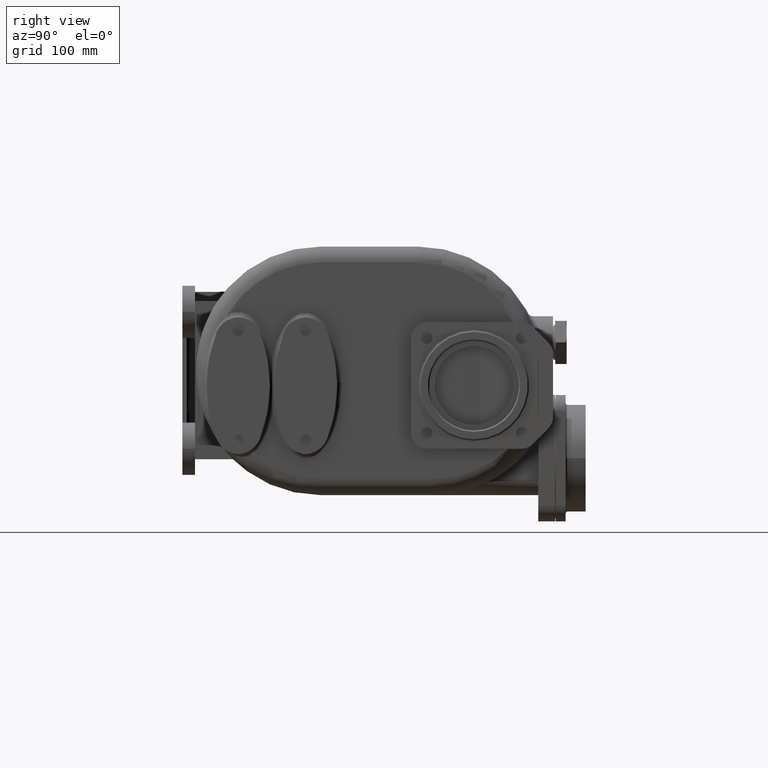
[diagram: clean part render]
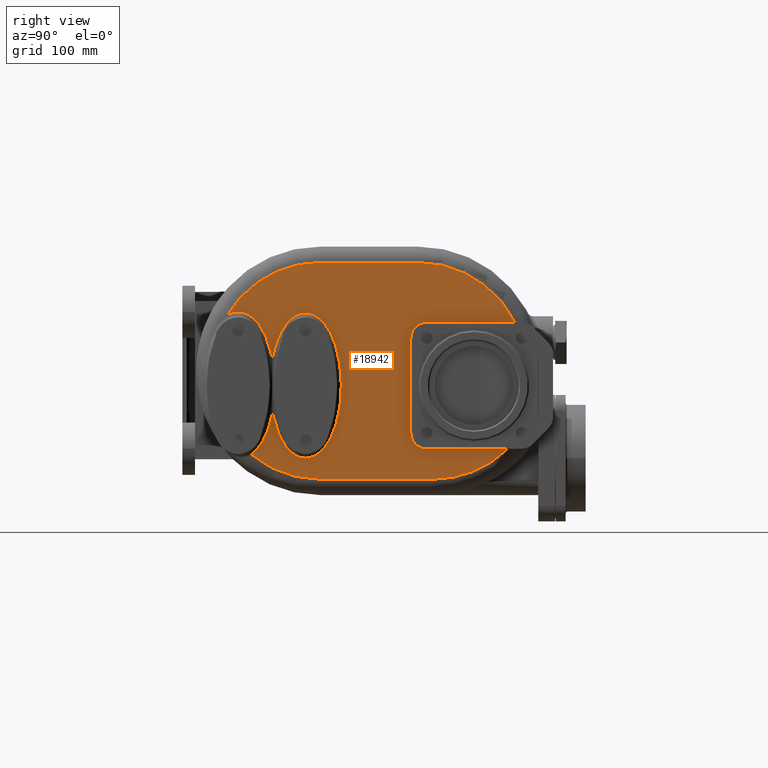
[diagram: same view with one face highlighted and labeled with its STEP entity id]
A machine part, right view. The second image highlights one B-rep face of the part: STEP entity #18942.
In plain terms, the highlighted planar face has unit normal (-1, 0, 0).
Its self-contained STEP definition (entity closure, byte-faithful):
#907=DIRECTION('',(0.E0,1.E0,0.E0));
#908=VECTOR('',#907,7.721747427557E1);
#909=CARTESIAN_POINT('',(1.325E2,2.2E2,-7.4E1));
#910=LINE('',#909,#908);
#924=CARTESIAN_POINT('',(1.325E2,2.2E2,-5.9E1));
#925=DIRECTION('',(-1.E0,0.E0,0.E0));
#926=DIRECTION('',(0.E0,0.E0,-1.E0));
#927=AXIS2_PLACEMENT_3D('',#924,#925,#926);
#933=DIRECTION('',(0.E0,0.E0,-1.E0));
#934=VECTOR('',#933,9.E1);
#935=CARTESIAN_POINT('',(1.325E2,2.05E2,3.1E1));
#936=LINE('',#935,#934);
#950=CARTESIAN_POINT('',(1.325E2,2.2E2,3.1E1));
#951=DIRECTION('',(-1.E0,0.E0,0.E0));
#952=DIRECTION('',(0.E0,-1.E0,0.E0));
#953=AXIS2_PLACEMENT_3D('',#950,#951,#952);
#959=DIRECTION('',(0.E0,-1.E0,0.E0));
#960=VECTOR('',#959,8.393324066124E1);
#961=CARTESIAN_POINT('',(1.325E2,3.039332406612E2,4.6E1));
#962=LINE('',#961,#960);
#1549=CARTESIAN_POINT('',(1.325000328696E2,4.100000001190E1,5.599999999963E1));
#1550=CARTESIAN_POINT('',(1.325000597067E2,4.078904459422E1,5.599995861454E1));
#1551=CARTESIAN_POINT('',(1.324999722900E2,4.036731719132E1,5.599263950274E1));
#1552=CARTESIAN_POINT('',(1.325000074249E2,3.973543857461E1,5.596075368949E1));
#1553=CARTESIAN_POINT('',(1.324999980105E2,3.910378540716E1,5.590774089882E1));
#1554=CARTESIAN_POINT('',(1.325000005331E2,3.847206560237E1,5.583355820947E1));
#1555=CARTESIAN_POINT('',(1.324999998571E2,3.783995883377E1,5.573791262683E1));
#1556=CARTESIAN_POINT('',(1.325000000384E2,3.720725656494E1,5.562036078564E1));
#1557=CARTESIAN_POINT('',(1.324999999894E2,3.657333886004E1,5.548066543318E1));
#1558=CARTESIAN_POINT('',(1.325000000042E2,3.593754042254E1,5.531843172213E1));
#1559=CARTESIAN_POINT('',(1.324999999939E2,3.529930544617E1,5.513310105641E1));
#1560=CARTESIAN_POINT('',(1.325000000202E2,3.465878790745E1,5.492418128094E1));
#1561=CARTESIAN_POINT('',(1.324999999254E2,3.401634381187E1,5.469115863273E1));
#1562=CARTESIAN_POINT('',(1.325000002781E2,3.337200397269E1,5.443334788660E1));
#1563=CARTESIAN_POINT('',(1.324999989623E2,3.272487173303E1,5.414985061923E1));
#1564=CARTESIAN_POINT('',(1.325000038726E2,3.207430683368E1,5.383967718891E1));
#1565=CARTESIAN_POINT('',(1.324999855473E2,3.141991594930E1,5.350170479017E1));
#1566=CARTESIAN_POINT('',(1.325000311413E2,3.098062045923E1,5.325709667145E1));
#1567=CARTESIAN_POINT('',(1.325000206654E2,3.076040674511E1,5.312978356908E1));
#1569=CARTESIAN_POINT('',(1.325E2,1.19E2,0.E0));
#1570=DIRECTION('',(1.E0,0.E0,0.E0));
#1571=DIRECTION('',(0.E0,0.E0,1.E0));
#1572=AXIS2_PLACEMENT_3D('',#1569,#1570,#1571);
#1574=DIRECTION('',(0.E0,-1.E0,0.E0));
#1575=VECTOR('',#1574,9.277576673753E1);
#1576=CARTESIAN_POINT('',(1.325E2,2.117757667375E2,1.03E2));
#1577=LINE('',#1576,#1575);
#1578=CARTESIAN_POINT('',(1.325E2,2.117757667375E2,0.E0));
#1579=DIRECTION('',(1.E0,0.E0,0.E0));
#1580=DIRECTION('',(0.E0,8.947327565409E-1,4.466019417476E-1));
#1581=AXIS2_PLACEMENT_3D('',#1578,#1579,#1580);
#1583=CARTESIAN_POINT('',(1.325E2,2.255725163232E2,0.E0));
#1584=DIRECTION('',(1.E0,0.E0,0.E0));
#1585=DIRECTION('',(0.E0,0.E0,-1.E0));
#1586=AXIS2_PLACEMENT_3D('',#1583,#1584,#1585);
#1588=DIRECTION('',(0.E0,1.E0,0.E0));
#1589=VECTOR('',#1588,1.065725163232E2);
#1590=CARTESIAN_POINT('',(1.325E2,1.19E2,-1.03E2));
#1591=LINE('',#1590,#1589);
#1592=CARTESIAN_POINT('',(1.325E2,1.19E2,0.E0));
#1593=DIRECTION('',(1.E0,0.E0,0.E0));
#1594=DIRECTION('',(0.E0,-6.348914105984E-1,-7.726013828284E-1));
#1595=AXIS2_PLACEMENT_3D('',#1592,#1593,#1594);
#1597=CARTESIAN_POINT('',(1.325E2,5.360618488877E1,-7.957794221179E1));
#1598=CARTESIAN_POINT('',(1.325000099529E2,5.383258212588E1,-7.941142149109E1));
#1599=CARTESIAN_POINT('',(1.324999953808E2,5.428695138342E1,-7.906652078089E1));
#1600=CARTESIAN_POINT('',(1.325000012377E2,5.497183810891E1,-7.851313720652E1));
#1601=CARTESIAN_POINT('',(1.324999996684E2,5.566126164059E1,-7.792104444036E1));
#1602=CARTESIAN_POINT('',(1.325000000889E2,5.635549428510E1,-7.728809084481E1));
#1603=CARTESIAN_POINT('',(1.324999999762E2,5.705480925611E1,-7.661201824303E1));
#1604=CARTESIAN_POINT('',(1.325000000064E2,5.775923978906E1,-7.589036865806E1));
#1605=CARTESIAN_POINT('',(1.324999999983E2,5.846861398165E1,-7.512070227453E1));
#1606=CARTESIAN_POINT('',(1.325000000005E2,5.918272603160E1,-7.430064470138E1));
#1607=CARTESIAN_POINT('',(1.324999999999E2,5.990135550263E1,-7.342739339025E1));
#1608=CARTESIAN_POINT('',(1.325E2,6.062397945476E1,-7.249820223684E1));
#1609=CARTESIAN_POINT('',(1.325E2,6.135026703354E1,-7.151022031077E1));
#1610=CARTESIAN_POINT('',(1.325E2,6.207967199749E1,-7.046018024982E1));
#1611=CARTESIAN_POINT('',(1.325E2,6.281145940005E1,-6.934495579568E1));
#1612=CARTESIAN_POINT('',(1.325E2,6.354485911065E1,-6.816136058512E1));
#1613=CARTESIAN_POINT('',(1.325E2,6.427870765403E1,-6.690608333217E1));
#1614=CARTESIAN_POINT('',(1.325E2,6.501187487718E1,-6.557603638375E1));
#1615=CARTESIAN_POINT('',(1.325E2,6.574281245627E1,-6.416798123756E1));
#1616=CARTESIAN_POINT('',(1.325E2,6.646993027270E1,-6.267906076415E1));
#1617=CARTESIAN_POINT('',(1.325E2,6.719124706164E1,-6.110638445539E1));
#1618=CARTESIAN_POINT('',(1.325E2,6.790471633933E1,-5.944752384443E1));
#1619=CARTESIAN_POINT('',(1.325E2,6.860790030526E1,-5.770018006198E1));
#1620=CARTESIAN_POINT('',(1.324999999999E2,6.929832094230E1,-5.586258034588E1));
#1621=CARTESIAN_POINT('',(1.325000000004E2,6.997308819763E1,-5.393333705973E1));
#1622=CARTESIAN_POINT('',(1.324999999984E2,7.062933656139E1,-5.191158367178E1));
#1623=CARTESIAN_POINT('',(1.325000000060E2,7.126378804980E1,-4.979716326575E1));
#1624=CARTESIAN_POINT('',(1.324999999776E2,7.187326437554E1,-4.759027506563E1));
#1625=CARTESIAN_POINT('',(1.325000000835E2,7.245416745521E1,-4.529297647635E1));
#1626=CARTESIAN_POINT('',(1.324999996883E2,7.300260658398E1,-4.290687501327E1));
#1627=CARTESIAN_POINT('',(1.325000006716E2,7.334541150039E1,-4.126042918112E1));
#1628=CARTESIAN_POINT('',(1.325E2,7.350998455622E1,-4.042274691483E1));
#1630=CARTESIAN_POINT('',(1.325E2,7.350998455622E1,-4.042274691483E1));
#1631=CARTESIAN_POINT('',(1.324999998494E2,7.367789624543E1,-4.127011276095E1));
#1632=CARTESIAN_POINT('',(1.325000000699E2,7.402680804282E1,-4.293483073294E1));
#1633=CARTESIAN_POINT('',(1.324999999813E2,7.458703887742E1,-4.534407256102E1));
#1634=CARTESIAN_POINT('',(1.325000000050E2,7.518007992217E1,-4.766109443498E1));
#1635=CARTESIAN_POINT('',(1.324999999987E2,7.580254793975E1,-4.988483902539E1));
#1636=CARTESIAN_POINT('',(1.325000000004E2,7.645024761983E1,-5.201180887653E1));
#1637=CARTESIAN_POINT('',(1.324999999999E2,7.711939406994E1,-5.404103155005E1));
#1638=CARTESIAN_POINT('',(1.325E2,7.780675824632E1,-5.597339846147E1));
#1639=CARTESIAN_POINT('',(1.325E2,7.850917913073E1,-5.780983705825E1));
#1640=CARTESIAN_POINT('',(1.325E2,7.922363150074E1,-5.955199082221E1));
#1641=CARTESIAN_POINT('',(1.325E2,7.994753847940E1,-6.120204448224E1));
#1642=CARTESIAN_POINT('',(1.325E2,8.067838095211E1,-6.276260639526E1));
#1643=CARTESIAN_POINT('',(1.325E2,8.141401553517E1,-6.423641463536E1));
#1644=CARTESIAN_POINT('',(1.325E2,8.215242569583E1,-6.562664848842E1));
#1645=CARTESIAN_POINT('',(1.325E2,8.289195462694E1,-6.693647697531E1));
#1646=CARTESIAN_POINT('',(1.325E2,8.363101938709E1,-6.816933660608E1));
#1647=CARTESIAN_POINT('',(1.325E2,8.436843322278E1,-6.932855284699E1));
#1648=CARTESIAN_POINT('',(1.325E2,8.510303888186E1,-7.041774552568E1));
#1649=CARTESIAN_POINT('',(1.325E2,8.583413640238E1,-7.144029435040E1));
#1650=CARTESIAN_POINT('',(1.325E2,8.656095659504E1,-7.239964838373E1));
#1651=CARTESIAN_POINT('',(1.325E2,8.728309356823E1,-7.329924521088E1));
#1652=CARTESIAN_POINT('',(1.325E2,8.800018726208E1,-7.414208841711E1));
#1653=CARTESIAN_POINT('',(1.325E2,8.871183808987E1,-7.493125435956E1));
#1654=CARTESIAN_POINT('',(1.325E2,8.941798338476E1,-7.566962819564E1));
#1655=CARTESIAN_POINT('',(1.325E2,9.011837361802E1,-7.635970731899E1));
#1656=CARTESIAN_POINT('',(1.325E2,9.081298773100E1,-7.700416277622E1));
#1657=CARTESIAN_POINT('',(1.325E2,9.150182468270E1,-7.760526325870E1));
#1658=CARTESIAN_POINT('',(1.325E2,9.218487494991E1,-7.816519642992E1));
#1659=CARTESIAN_POINT('',(1.325E2,9.286234052149E1,-7.868614081091E1));
#1660=CARTESIAN_POINT('',(1.325E2,9.353426453316E1,-7.916991322588E1));
#1661=CARTESIAN_POINT('',(1.325E2,9.420094624296E1,-7.961840736248E1));
#1662=CARTESIAN_POINT('',(1.325E2,9.486259096987E1,-8.003327892714E1));
#1663=CARTESIAN_POINT('',(1.325E2,9.551946548227E1,-8.041605992152E1));
#1664=CARTESIAN_POINT('',(1.325E2,9.617196131604E1,-8.076821375935E1));
#1665=CARTESIAN_POINT('',(1.325E2,9.682021293601E1,-8.109095764541E1));
#1666=CARTESIAN_POINT('',(1.325E2,9.746459876736E1,-8.138546584325E1));
#1667=CARTESIAN_POINT('',(1.325E2,9.810539135034E1,-8.165281128892E1));
#1668=CARTESIAN_POINT('',(1.325E2,9.874306524863E1,-8.189398090718E1));
#1669=CARTESIAN_POINT('',(1.325E2,9.937786454031E1,-8.210976292676E1));
#1670=CARTESIAN_POINT('',(1.325000000001E2,1.000098028454E2,-8.230086570593E1));
#1671=CARTESIAN_POINT('',(1.324999999996E2,1.006391232133E2,-8.246788882713E1));
#1672=CARTESIAN_POINT('',(1.325000000015E2,1.012664417853E2,-8.261152394998E1));
#1673=CARTESIAN_POINT('',(1.324999999945E2,1.018925337367E2,-8.273238098586E1));
#1674=CARTESIAN_POINT('',(1.325000000206E2,1.025177605251E2,-8.283072268979E1));
#1675=CARTESIAN_POINT('',(1.324999999232E2,1.031415570478E2,-8.290675938266E1));
#1676=CARTESIAN_POINT('',(1.325000002868E2,1.037635286974E2,-8.296076718126E1));
#1677=CARTESIAN_POINT('',(1.324999989296E2,1.043833396169E2,-8.299289453705E1));
#1678=CARTESIAN_POINT('',(1.325000023063E2,1.047947285975E2,-8.299999601024E1));
#1679=CARTESIAN_POINT('',(1.325E2,1.05E2,-8.3E1));
#1681=CARTESIAN_POINT('',(1.325000305533E2,1.049999999816E2,-8.299999999931E1));
#1682=CARTESIAN_POINT('',(1.325000674114E2,1.052090012241E2,-8.299992644927E1));
#1683=CARTESIAN_POINT('',(1.324999687142E2,1.056270255100E2,-8.299218968674E1));
#1684=CARTESIAN_POINT('',(1.325000083830E2,1.062540170899E2,-8.295892431742E1));
#1685=CARTESIAN_POINT('',(1.324999977538E2,1.068812957697E2,-8.290365470445E1));
#1686=CARTESIAN_POINT('',(1.325000006019E2,1.075090524119E2,-8.282639100537E1));
#1687=CARTESIAN_POINT('',(1.324999998387E2,1.081374641010E2,-8.272684655833E1));
#1688=CARTESIAN_POINT('',(1.325000000432E2,1.087666720669E2,-8.260461242896E1));
#1689=CARTESIAN_POINT('',(1.324999999884E2,1.093966411860E2,-8.245910830710E1));
#1690=CARTESIAN_POINT('',(1.325000000031E2,1.100279663013E2,-8.229004137539E1));
#1691=CARTESIAN_POINT('',(1.324999999992E2,1.106618768325E2,-8.209676653357E1));
#1692=CARTESIAN_POINT('',(1.325000000002E2,1.112993702637E2,-8.187843993694E1));
#1693=CARTESIAN_POINT('',(1.324999999999E2,1.119411951526E2,-8.163404992514E1));
#1694=CARTESIAN_POINT('',(1.325E2,1.125867150700E2,-8.136296373812E1));
#1695=CARTESIAN_POINT('',(1.325E2,1.132352205055E2,-8.106450637150E1));
#1696=CARTESIAN_POINT('',(1.325E2,1.138861238099E2,-8.073808289346E1));
#1697=CARTESIAN_POINT('',(1.325E2,1.145409576563E2,-8.038210116132E1));
#1698=CARTESIAN_POINT('',(1.325E2,1.152010534471E2,-7.999469243728E1));
#1699=CARTESIAN_POINT('',(1.325E2,1.158670152700E2,-7.957413519786E1));
#1700=CARTESIAN_POINT('',(1.325E2,1.165382840987E2,-7.911929210331E1));
#1701=CARTESIAN_POINT('',(1.325E2,1.172142566557E2,-7.862903491612E1));
#1702=CARTESIAN_POINT('',(1.325E2,1.178955036159E2,-7.810126367541E1));
#1703=CARTESIAN_POINT('',(1.325E2,1.185825623895E2,-7.753369424044E1));
#1704=CARTESIAN_POINT('',(1.325E2,1.192756881664E2,-7.692410206591E1));
#1705=CARTESIAN_POINT('',(1.325E2,1.199748934024E2,-7.627029727864E1));
#1706=CARTESIAN_POINT('',(1.325E2,1.206802860081E2,-7.556956662254E1));
#1707=CARTESIAN_POINT('',(1.325E2,1.213918122970E2,-7.481924366011E1));
#1708=CARTESIAN_POINT('',(1.325E2,1.221091996402E2,-7.401682543878E1));
#1709=CARTESIAN_POINT('',(1.325E2,1.228322675489E2,-7.315912341627E1));
#1710=CARTESIAN_POINT('',(1.325E2,1.235607026653E2,-7.224303173772E1));
#1711=CARTESIAN_POINT('',(1.325E2,1.242939926264E2,-7.126555003725E1));
#1712=CARTESIAN_POINT('',(1.325E2,1.250315394088E2,-7.022304862985E1));
#1713=CARTESIAN_POINT('',(1.325E2,1.257726330351E2,-6.911225902183E1));
#1714=CARTESIAN_POINT('',(1.325E2,1.265162589428E2,-6.792964990794E1));
#1715=CARTESIAN_POINT('',(1.325E2,1.272612707911E2,-6.667175244497E1));
#1716=CARTESIAN_POINT('',(1.325E2,1.280063052190E2,-6.533517515477E1));
#1717=CARTESIAN_POINT('',(1.325E2,1.287497947765E2,-6.391641395771E1));
#1718=CARTESIAN_POINT('',(1.325E2,1.294899426008E2,-6.241225142872E1));
#1719=CARTESIAN_POINT('',(1.325E2,1.302246766935E2,-6.081961130851E1));
#1720=CARTESIAN_POINT('',(1.325E2,1.309516531340E2,-5.913574379065E1));
#1721=CARTESIAN_POINT('',(1.325E2,1.316683663205E2,-5.735818262544E1));
#1722=CARTESIAN_POINT('',(1.325E2,1.323719116723E2,-5.548499052007E1));
#1723=CARTESIAN_POINT('',(1.325E2,1.330592911908E2,-5.351473067207E1));
#1724=CARTESIAN_POINT('',(1.325E2,1.337271621395E2,-5.144663556630E1));
#1725=CARTESIAN_POINT('',(1.325E2,1.343720281157E2,-4.928068804008E1));
#1726=CARTESIAN_POINT('',(1.325E2,1.349902689621E2,-4.701761014587E1));
#1727=CARTESIAN_POINT('',(1.325E2,1.355780635216E2,-4.465909813892E1));
#1728=CARTESIAN_POINT('',(1.325E2,1.361315570135E2,-4.220783245504E1));
#1729=CARTESIAN_POINT('',(1.325E2,1.366469100679E2,-3.966745090312E1));
#1730=CARTESIAN_POINT('',(1.325E2,1.371202348700E2,-3.704282958602E1));
#1731=CARTESIAN_POINT('',(1.325E2,1.375478721205E2,-3.433983113159E1));
#1732=CARTESIAN_POINT('',(1.325E2,1.379263015839E2,-3.156538085172E1));
#1733=CARTESIAN_POINT('',(1.325E2,1.382522594025E2,-2.872761571355E1));
#1734=CARTESIAN_POINT('',(1.325E2,1.385229282508E2,-2.583533162827E1));
#1735=CARTESIAN_POINT('',(1.325E2,1.387357445404E2,-2.289861548814E1));
#1736=CARTESIAN_POINT('',(1.325E2,1.388888380732E2,-1.992786095037E1));
#1737=CARTESIAN_POINT('',(1.325E2,1.389806430257E2,-1.693436692866E1));
#1738=CARTESIAN_POINT('',(1.325E2,1.390103994333E2,-1.392952571376E1));
#1739=CARTESIAN_POINT('',(1.325E2,1.389777283047E2,-1.092505184889E1));
#1740=CARTESIAN_POINT('',(1.325E2,1.388830271780E2,-7.932722796880E0));
#1741=CARTESIAN_POINT('',(1.325E2,1.387271614568E2,-4.963851758470E0));
#1742=CARTESIAN_POINT('',(1.325E2,1.385116428912E2,-2.029740573622E0));
#1743=CARTESIAN_POINT('',(1.325E2,1.382384735139E2,8.593259754140E-1));
#1744=CARTESIAN_POINT('',(1.325E2,1.379101562165E2,3.693301470709E0));
#1745=CARTESIAN_POINT('',(1.325E2,1.375295825333E2,6.463531861105E0));
#1746=CARTESIAN_POINT('',(1.325E2,1.371000258930E2,9.161868572954E0));
#1747=CARTESIAN_POINT('',(1.325E2,1.366249502945E2,1.178165810114E1));
#1748=CARTESIAN_POINT('',(1.325E2,1.361081290250E2,1.431690418055E1));
#1749=CARTESIAN_POINT('',(1.325E2,1.355533225267E2,1.676297984665E1));
#1750=CARTESIAN_POINT('',(1.325E2,1.349644673058E2,1.911614808688E1));
#1751=CARTESIAN_POINT('',(1.325E2,1.343454132221E2,2.137375559247E1));
#1752=CARTESIAN_POINT('',(1.325E2,1.336999386291E2,2.353414459508E1));
#1753=CARTESIAN_POINT('',(1.325E2,1.330317602519E2,2.559652229327E1));
#1754=CARTESIAN_POINT('',(1.325E2,1.323443539792E2,2.756094173722E1));
#1755=CARTESIAN_POINT('',(1.325E2,1.316409763752E2,2.942834580120E1));
#1756=CARTESIAN_POINT('',(1.325E2,1.309247076036E2,3.120021194827E1));
#1757=CARTESIAN_POINT('',(1.325E2,1.301982621958E2,3.287861707805E1));
#1758=CARTESIAN_POINT('',(1.325E2,1.294642834310E2,3.446601181011E1));
#1759=CARTESIAN_POINT('',(1.325E2,1.287249721011E2,3.596515897473E1));
#1760=CARTESIAN_POINT('',(1.325E2,1.279824879231E2,3.737916361309E1));
#1761=CARTESIAN_POINT('',(1.325E2,1.272385157221E2,3.871124035563E1));
#1762=CARTESIAN_POINT('',(1.325E2,1.264947485859E2,3.996484726437E1));
#1763=CARTESIAN_POINT('',(1.325E2,1.257524356850E2,4.114331896641E1));
#1764=CARTESIAN_POINT('',(1.325E2,1.250128287310E2,4.225027288641E1));
#1765=CARTESIAN_POINT('',(1.325E2,1.242767811669E2,4.328907855086E1));
#1766=CARTESIAN_POINT('',(1.325E2,1.235449936418E2,4.426332970490E1));
#1767=CARTESIAN_POINT('',(1.325E2,1.228181333447E2,4.517636621530E1));
#1768=CARTESIAN_POINT('',(1.325E2,1.220964753718E2,4.603140149934E1));
#1769=CARTESIAN_POINT('',(1.325E2,1.213803044478E2,4.683173539496E1));
#1770=CARTESIAN_POINT('',(1.325E2,1.206699424037E2,4.758012889184E1));
#1771=CARTESIAN_POINT('',(1.325E2,1.199653674240E2,4.827942344366E1));
#1772=CARTESIAN_POINT('',(1.325E2,1.192666671093E2,4.893229769441E1));
#1773=CARTESIAN_POINT('',(1.325E2,1.185738737993E2,4.954107804601E1));
#1774=CARTESIAN_POINT('',(1.325E2,1.178867670930E2,5.010817852060E1));
#1775=CARTESIAN_POINT('',(1.325E2,1.172053380604E2,5.063566814903E1));
#1776=CARTESIAN_POINT('',(1.325E2,1.165293995457E2,5.112551299230E1));
#1777=CARTESIAN_POINT('',(1.325E2,1.158586888260E2,5.157959991729E1));
#1778=CARTESIAN_POINT('',(1.325E2,1.151930819940E2,5.199956601686E1));
#1779=CARTESIAN_POINT('',(1.325E2,1.145322229117E2,5.238702723102E1));
#1780=CARTESIAN_POINT('',(1.325E2,1.138759084622E2,5.274336416382E1));
#1781=CARTESIAN_POINT('',(1.325E2,1.132239048907E2,5.306988704666E1));
#1782=CARTESIAN_POINT('',(1.325E2,1.125758361596E2,5.336779343435E1));
#1783=CARTESIAN_POINT('',(1.325E2,1.119313583581E2,5.363820507463E1));
#1784=CARTESIAN_POINT('',(1.325000000001E2,1.112900090894E2,5.388212168236E1));
#1785=CARTESIAN_POINT('',(1.324999999996E2,1.106517124367E2,5.410028242332E1));
#1786=CARTESIAN_POINT('',(1.325000000015E2,1.100164299329E2,5.429344002331E1));
#1787=CARTESIAN_POINT('',(1.324999999944E2,1.093837291590E2,5.446226847288E1));
#1788=CARTESIAN_POINT('',(1.325000000211E2,1.087529158174E2,5.460747298397E1));
#1789=CARTESIAN_POINT('',(1.324999999214E2,1.081231348382E2,5.472967303425E1));
#1790=CARTESIAN_POINT('',(1.325000002935E2,1.074944034483E2,5.482906160081E1));
#1791=CARTESIAN_POINT('',(1.324999989048E2,1.068672676338E2,5.490587433403E1));
#1792=CARTESIAN_POINT('',(1.325000040875E2,1.062421447818E2,5.496040848752E1));
#1793=CARTESIAN_POINT('',(1.324999847452E2,1.056193774198E2,5.499283366194E1));
#1794=CARTESIAN_POINT('',(1.325000328695E2,1.052061546514E2,5.499999599238E1));
#1795=CARTESIAN_POINT('',(1.325000305533E2,1.050000000184E2,5.499999999931E1));
#1797=CARTESIAN_POINT('',(1.325E2,1.05E2,5.5E1));
#1798=CARTESIAN_POINT('',(1.325000366452E2,1.047922064635E2,5.499992687497E1));
#1799=CARTESIAN_POINT('',(1.324999829929E2,1.043765909675E2,5.499227646013E1));
#1800=CARTESIAN_POINT('',(1.325000045570E2,1.037531766054E2,5.495938952763E1));
#1801=CARTESIAN_POINT('',(1.324999987789E2,1.031294871606E2,5.490474776289E1));
#1802=CARTESIAN_POINT('',(1.325000003272E2,1.025053587158E2,5.482836964614E1));
#1803=CARTESIAN_POINT('',(1.324999999123E2,1.018806463783E2,5.472998416228E1));
#1804=CARTESIAN_POINT('',(1.325000000235E2,1.012552211723E2,5.460920423468E1));
#1805=CARTESIAN_POINT('',(1.324999999937E2,1.006291792871E2,5.446548054E1));
#1806=CARTESIAN_POINT('',(1.325000000017E2,1.000016981689E2,5.429846195621E1));
#1807=CARTESIAN_POINT('',(1.324999999995E2,9.937151011204E1,5.410749449750E1));
#1808=CARTESIAN_POINT('',(1.325000000001E2,9.873746379185E1,5.389167303493E1));
#1809=CARTESIAN_POINT('',(1.325E2,9.809915814790E1,5.365010586205E1));
#1810=CARTESIAN_POINT('',(1.325E2,9.745737564093E1,5.338224655603E1));
#1811=CARTESIAN_POINT('',(1.325E2,9.681302914593E1,5.308757259767E1));
#1812=CARTESIAN_POINT('',(1.325E2,9.616617350266E1,5.276526199981E1));
#1813=CARTESIAN_POINT('',(1.325E2,9.551517430041E1,5.241366658468E1));
#1814=CARTESIAN_POINT('',(1.325E2,9.485881299824E1,5.203097710983E1));
#1815=CARTESIAN_POINT('',(1.325E2,9.419695725693E1,5.161579125457E1));
#1816=CARTESIAN_POINT('',(1.325E2,9.353010544331E1,5.116701269686E1));
#1817=CARTESIAN_POINT('',(1.325E2,9.285855674237E1,5.068336414557E1));
#1818=CARTESIAN_POINT('',(1.325E2,9.218164202289E1,5.016269643919E1));
#1819=CARTESIAN_POINT('',(1.325E2,9.149901666872E1,4.960290861958E1));
#1820=CARTESIAN_POINT('',(1.325E2,9.081055571500E1,4.900193869137E1));
#1821=CARTESIAN_POINT('',(1.325E2,9.011623927889E1,4.835769904473E1));
#1822=CARTESIAN_POINT('',(1.325E2,8.941589470341E1,4.766751741658E1));
#1823=CARTESIAN_POINT('',(1.325E2,8.870960720919E1,4.692882707786E1));
#1824=CARTESIAN_POINT('',(1.325E2,8.799755824028E1,4.613914018705E1));
#1825=CARTESIAN_POINT('',(1.325E2,8.727993933170E1,4.529542864540E1));
#1826=CARTESIAN_POINT('',(1.325E2,8.655721508728E1,4.439483622679E1));
#1827=CARTESIAN_POINT('',(1.325E2,8.582977490539E1,4.343443014673E1));
#1828=CARTESIAN_POINT('',(1.325E2,8.509816150554E1,4.241068582470E1));
#1829=CARTESIAN_POINT('',(1.325E2,8.436307292168E1,4.132041407696E1));
#1830=CARTESIAN_POINT('',(1.325E2,8.362533903012E1,4.016013826590E1));
#1831=CARTESIAN_POINT('',(1.325E2,8.288608309154E1,3.892638796724E1));
#1832=CARTESIAN_POINT('',(1.325E2,8.214648558006E1,3.761580821268E1));
#1833=CARTESIAN_POINT('',(1.325E2,8.140808769053E1,3.622489963667E1));
#1834=CARTESIAN_POINT('',(1.325E2,8.067254419535E1,3.475052391886E1));
#1835=CARTESIAN_POINT('',(1.325E2,7.994185982188E1,3.318952983826E1));
#1836=CARTESIAN_POINT('',(1.325E2,7.921823507799E1,3.153922458585E1));
#1837=CARTESIAN_POINT('',(1.325E2,7.850413561901E1,2.979712827159E1));
#1838=CARTESIAN_POINT('',(1.324999999999E2,7.780226052494E1,2.796112803419E1));
#1839=CARTESIAN_POINT('',(1.325000000003E2,7.711550980692E1,2.602968652204E1));
#1840=CARTESIAN_POINT('',(1.324999999989E2,7.644707092262E1,2.400172608896E1));
#1841=CARTESIAN_POINT('',(1.325000000040E2,7.580022584610E1,2.187679236086E1));
#1842=CARTESIAN_POINT('',(1.324999999853E2,7.517859099981E1,1.965550278964E1));
#1843=CARTESIAN_POINT('',(1.325000000550E2,7.458606816049E1,1.734003038428E1));
#1844=CARTESIAN_POINT('',(1.324999997946E2,7.402624684585E1,1.493221224203E1));
#1845=CARTESIAN_POINT('',(1.325000004425E2,7.367775373999E1,1.326937570006E1));
#1846=CARTESIAN_POINT('',(1.325E2,7.351005518292E1,1.242310183278E1));
#1848=CARTESIAN_POINT('',(1.325E2,7.351005518292E1,1.242310183278E1));
#1849=CARTESIAN_POINT('',(1.324999987239E2,7.334423886919E1,1.326716530350E1));
#1850=CARTESIAN_POINT('',(1.325000005922E2,7.299843704194E1,1.492619494936E1));
#1851=CARTESIAN_POINT('',(1.324999998413E2,7.244514246766E1,1.733109925846E1));
#1852=CARTESIAN_POINT('',(1.325000000425E2,7.185854797613E1,1.964633789804E1));
#1853=CARTESIAN_POINT('',(1.324999999886E2,7.124291174524E1,2.187013140681E1));
#1854=CARTESIAN_POINT('',(1.325000000031E2,7.060169265056E1,2.400036956963E1));
#1855=CARTESIAN_POINT('',(1.324999999992E2,6.993835338196E1,2.603669300401E1));
#1856=CARTESIAN_POINT('',(1.325000000002E2,6.925606329933E1,2.797919272605E1));
#1857=CARTESIAN_POINT('',(1.324999999999E2,6.855797113645E1,2.982865801440E1));
#1858=CARTESIAN_POINT('',(1.325E2,6.784685752258E1,3.158649178941E1));
#1859=CARTESIAN_POINT('',(1.325E2,6.712540153464E1,3.325451731096E1));
#1860=CARTESIAN_POINT('',(1.325E2,6.639596190462E1,3.483510812635E1));
#1861=CARTESIAN_POINT('',(1.325E2,6.566068421608E1,3.633080282894E1));
#1862=CARTESIAN_POINT('',(1.325E2,6.492156886573E1,3.774446206241E1));
#1863=CARTESIAN_POINT('',(1.325E2,6.418028558491E1,3.907901473210E1));
#1864=CARTESIAN_POINT('',(1.325E2,6.343839791381E1,4.033769348433E1));
#1865=CARTESIAN_POINT('',(1.325E2,6.269715624119E1,4.152364372253E1));
#1866=CARTESIAN_POINT('',(1.325E2,6.195763995333E1,4.264022124422E1));
#1867=CARTESIAN_POINT('',(1.325E2,6.122077953490E1,4.369071576761E1));
#1868=CARTESIAN_POINT('',(1.325E2,6.048726955233E1,4.467820681759E1));
#1869=CARTESIAN_POINT('',(1.325E2,5.975770078588E1,4.560607874671E1));
#1870=CARTESIAN_POINT('',(1.325E2,5.903256027150E1,4.647713846010E1));
#1871=CARTESIAN_POINT('',(1.325E2,5.831214316370E1,4.729439935781E1));
#1872=CARTESIAN_POINT('',(1.325E2,5.759668855385E1,4.806072231043E1));
#1873=CARTESIAN_POINT('',(1.325E2,5.688638412657E1,4.877858057421E1));
#1874=CARTESIAN_POINT('',(1.325E2,5.618118219177E1,4.945068423267E1));
#1875=CARTESIAN_POINT('',(1.325E2,5.548116421567E1,5.007927092819E1));
#1876=CARTESIAN_POINT('',(1.325E2,5.478621189594E1,5.066657663506E1));
#1877=CARTESIAN_POINT('',(1.325E2,5.409615761119E1,5.121474676616E1));
#1878=CARTESIAN_POINT('',(1.325E2,5.341096390714E1,5.172557471044E1));
#1879=CARTESIAN_POINT('',(1.325E2,5.273031321118E1,5.220093999553E1));
#1880=CARTESIAN_POINT('',(1.325E2,5.205408428997E1,5.264242583198E1));
#1881=CARTESIAN_POINT('',(1.325E2,5.138200289741E1,5.305156261437E1));
#1882=CARTESIAN_POINT('',(1.325E2,5.071379286820E1,5.342973775042E1));
#1883=CARTESIAN_POINT('',(1.325E2,5.004933767698E1,5.377816020022E1));
#1884=CARTESIAN_POINT('',(1.325E2,4.938829465362E1,5.409799584732E1));
#1885=CARTESIAN_POINT('',(1.325E2,4.873042092336E1,5.439030153052E1));
#1886=CARTESIAN_POINT('',(1.325E2,4.807528629554E1,5.465607964366E1));
#1887=CARTESIAN_POINT('',(1.325E2,4.742269517296E1,5.489608931243E1));
#1888=CARTESIAN_POINT('',(1.324999999999E2,4.677268012549E1,5.511103770430E1));
#1889=CARTESIAN_POINT('',(1.325000000003E2,4.612509856576E1,5.530153973473E1));
#1890=CARTESIAN_POINT('',(1.324999999989E2,4.547941124858E1,5.546826296252E1));
#1891=CARTESIAN_POINT('',(1.325000000041E2,4.483500764503E1,5.561185841176E1));
#1892=CARTESIAN_POINT('',(1.324999999847E2,4.419133852847E1,5.573270204196E1));
#1893=CARTESIAN_POINT('',(1.325000000571E2,4.354891285809E1,5.583096700742E1));
#1894=CARTESIAN_POINT('',(1.324999997870E2,4.290812975109E1,5.590694739514E1));
#1895=CARTESIAN_POINT('',(1.325000007948E2,4.226936871771E1,5.596083461892E1));
#1896=CARTESIAN_POINT('',(1.324999970337E2,4.163297758588E1,5.599286836985E1));
#1897=CARTESIAN_POINT('',(1.325000063915E2,4.121068596199E1,5.599999063830E1));
#1898=CARTESIAN_POINT('',(1.325E2,4.1E1,5.6E1));
#14873=CARTESIAN_POINT('',(1.325E2,2.05E2,3.1E1));
#14874=CARTESIAN_POINT('',(1.325E2,2.05E2,-5.9E1));
#14875=VERTEX_POINT('',#14873);
#14876=VERTEX_POINT('',#14874);
#14877=CARTESIAN_POINT('',(1.325E2,2.2E2,-7.4E1));
#14878=VERTEX_POINT('',#14877);
#14879=CARTESIAN_POINT('',(1.325E2,2.2E2,4.6E1));
#14880=VERTEX_POINT('',#14879);
#14893=CARTESIAN_POINT('',(1.325E2,2.255725163232E2,-1.03E2));
#14894=CARTESIAN_POINT('',(1.325E2,2.972174742756E2,-7.4E1));
#14895=VERTEX_POINT('',#14893);
#14896=VERTEX_POINT('',#14894);
#14897=CARTESIAN_POINT('',(1.325E2,1.19E2,-1.03E2));
#14898=VERTEX_POINT('',#14897);
#14903=CARTESIAN_POINT('',(1.325E2,2.117757667375E2,1.03E2));
#14904=CARTESIAN_POINT('',(1.325E2,1.19E2,1.03E2));
#14905=VERTEX_POINT('',#14903);
#14906=VERTEX_POINT('',#14904);
#14909=CARTESIAN_POINT('',(1.325E2,3.039332406612E2,4.6E1));
#14910=VERTEX_POINT('',#14909);
#14945=VERTEX_POINT('',#1681);
#14946=VERTEX_POINT('',#1795);
#14967=VERTEX_POINT('',#1549);
#14968=VERTEX_POINT('',#1567);
#14970=VERTEX_POINT('',#1597);
#14971=VERTEX_POINT('',#1628);
#14975=VERTEX_POINT('',#1848);
#18907=CARTESIAN_POINT('',(1.325E2,1.2E2,0.E0));
#18908=DIRECTION('',(-1.E0,0.E0,0.E0));
#18909=DIRECTION('',(0.E0,0.E0,1.E0));
#18910=AXIS2_PLACEMENT_3D('',#18907,#18908,#18909);
#18911=PLANE('',#18910);
#18913=ORIENTED_EDGE('',*,*,#18912,.T.);
#18915=ORIENTED_EDGE('',*,*,#18914,.F.);
#18917=ORIENTED_EDGE('',*,*,#18916,.F.);
#18918=ORIENTED_EDGE('',*,*,#18896,.F.);
#18919=ORIENTED_EDGE('',*,*,#18125,.T.);
#18920=ORIENTED_EDGE('',*,*,#18110,.F.);
#18921=ORIENTED_EDGE('',*,*,#18095,.T.);
#18922=ORIENTED_EDGE('',*,*,#18080,.F.);
#18923=ORIENTED_EDGE('',*,*,#18065,.T.);
#18925=ORIENTED_EDGE('',*,*,#18924,.F.);
#18927=ORIENTED_EDGE('',*,*,#18926,.F.);
#18929=ORIENTED_EDGE('',*,*,#18928,.F.);
#18931=ORIENTED_EDGE('',*,*,#18930,.T.);
#18933=ORIENTED_EDGE('',*,*,#18932,.T.);
#18935=ORIENTED_EDGE('',*,*,#18934,.T.);
#18937=ORIENTED_EDGE('',*,*,#18936,.T.);
#18939=ORIENTED_EDGE('',*,*,#18938,.T.);
#18940=EDGE_LOOP('',(#18913,#18915,#18917,#18918,#18919,#18920,#18921,#18922,
#18923,#18925,#18927,#18929,#18931,#18933,#18935,#18937,#18939));
#18941=FACE_OUTER_BOUND('',#18940,.F.);
#18942=ADVANCED_FACE('',(#18941),#18911,.F.);
#928=CIRCLE('',#927,1.5E1);
#954=CIRCLE('',#953,1.5E1);
#1568=B_SPLINE_CURVE_WITH_KNOTS('',3,(#1549,#1550,#1551,#1552,#1553,#1554,#1555,
#1556,#1557,#1558,#1559,#1560,#1561,#1562,#1563,#1564,#1565,#1566,#1567),
.UNSPECIFIED.,.F.,.F.,(4,1,1,1,1,1,1,1,1,1,1,1,1,1,1,1,4),(0.E0,6.25E-2,1.25E-1,
1.875E-1,2.5E-1,3.125E-1,3.75E-1,4.375E-1,5.E-1,5.625E-1,6.25E-1,6.875E-1,
7.5E-1,8.125E-1,8.75E-1,9.375E-1,1.E0),.UNSPECIFIED.);
#1573=CIRCLE('',#1572,1.03E2);
#1582=CIRCLE('',#1581,1.03E2);
#1587=CIRCLE('',#1586,1.03E2);
#1596=CIRCLE('',#1595,1.03E2);
#1629=B_SPLINE_CURVE_WITH_KNOTS('',3,(#1597,#1598,#1599,#1600,#1601,#1602,#1603,
#1604,#1605,#1606,#1607,#1608,#1609,#1610,#1611,#1612,#1613,#1614,#1615,#1616,
#1617,#1618,#1619,#1620,#1621,#1622,#1623,#1624,#1625,#1626,#1627,#1628),
.UNSPECIFIED.,.F.,.F.,(4,1,1,1,1,1,1,1,1,1,1,1,1,1,1,1,1,1,1,1,1,1,1,1,1,1,1,1,
1,4),(0.E0,3.448275862069E-2,6.896551724138E-2,1.034482758621E-1,
1.379310344828E-1,1.724137931034E-1,2.068965517241E-1,2.413793103448E-1,
2.758620689655E-1,3.103448275862E-1,3.448275862069E-1,3.793103448276E-1,
4.137931034483E-1,4.482758620690E-1,4.827586206897E-1,5.172413793103E-1,
5.517241379310E-1,5.862068965517E-1,6.206896551724E-1,6.551724137931E-1,
6.896551724138E-1,7.241379310345E-1,7.586206896552E-1,7.931034482759E-1,
8.275862068966E-1,8.620689655172E-1,8.965517241379E-1,9.310344827586E-1,
9.655172413793E-1,1.E0),.UNSPECIFIED.);
#1680=B_SPLINE_CURVE_WITH_KNOTS('',3,(#1630,#1631,#1632,#1633,#1634,#1635,#1636,
#1637,#1638,#1639,#1640,#1641,#1642,#1643,#1644,#1645,#1646,#1647,#1648,#1649,
#1650,#1651,#1652,#1653,#1654,#1655,#1656,#1657,#1658,#1659,#1660,#1661,#1662,
#1663,#1664,#1665,#1666,#1667,#1668,#1669,#1670,#1671,#1672,#1673,#1674,#1675,
#1676,#1677,#1678,#1679),.UNSPECIFIED.,.F.,.F.,(4,1,1,1,1,1,1,1,1,1,1,1,1,1,1,1,
1,1,1,1,1,1,1,1,1,1,1,1,1,1,1,1,1,1,1,1,1,1,1,1,1,1,1,1,1,1,1,4),(0.E0,
2.127659574468E-2,4.255319148936E-2,6.382978723404E-2,8.510638297872E-2,
1.063829787234E-1,1.276595744681E-1,1.489361702128E-1,1.702127659574E-1,
1.914893617021E-1,2.127659574468E-1,2.340425531915E-1,2.553191489362E-1,
2.765957446809E-1,2.978723404255E-1,3.191489361702E-1,3.404255319149E-1,
3.617021276596E-1,3.829787234043E-1,4.042553191489E-1,4.255319148936E-1,
4.468085106383E-1,4.680851063830E-1,4.893617021277E-1,5.106382978723E-1,
5.319148936170E-1,5.531914893617E-1,5.744680851064E-1,5.957446808511E-1,
6.170212765957E-1,6.382978723404E-1,6.595744680851E-1,6.808510638298E-1,
7.021276595745E-1,7.234042553191E-1,7.446808510638E-1,7.659574468085E-1,
7.872340425532E-1,8.085106382979E-1,8.297872340426E-1,8.510638297872E-1,
8.723404255319E-1,8.936170212766E-1,9.148936170213E-1,9.361702127660E-1,
9.574468085106E-1,9.787234042553E-1,1.E0),.UNSPECIFIED.);
#1796=B_SPLINE_CURVE_WITH_KNOTS('',3,(#1681,#1682,#1683,#1684,#1685,#1686,#1687,
#1688,#1689,#1690,#1691,#1692,#1693,#1694,#1695,#1696,#1697,#1698,#1699,#1700,
#1701,#1702,#1703,#1704,#1705,#1706,#1707,#1708,#1709,#1710,#1711,#1712,#1713,
#1714,#1715,#1716,#1717,#1718,#1719,#1720,#1721,#1722,#1723,#1724,#1725,#1726,
#1727,#1728,#1729,#1730,#1731,#1732,#1733,#1734,#1735,#1736,#1737,#1738,#1739,
#1740,#1741,#1742,#1743,#1744,#1745,#1746,#1747,#1748,#1749,#1750,#1751,#1752,
#1753,#1754,#1755,#1756,#1757,#1758,#1759,#1760,#1761,#1762,#1763,#1764,#1765,
#1766,#1767,#1768,#1769,#1770,#1771,#1772,#1773,#1774,#1775,#1776,#1777,#1778,
#1779,#1780,#1781,#1782,#1783,#1784,#1785,#1786,#1787,#1788,#1789,#1790,#1791,
#1792,#1793,#1794,#1795),.UNSPECIFIED.,.F.,.F.,(4,1,1,1,1,1,1,1,1,1,1,1,1,1,1,1,
1,1,1,1,1,1,1,1,1,1,1,1,1,1,1,1,1,1,1,1,1,1,1,1,1,1,1,1,1,1,1,1,1,1,1,1,1,1,1,1,
1,1,1,1,1,1,1,1,1,1,1,1,1,1,1,1,1,1,1,1,1,1,1,1,1,1,1,1,1,1,1,1,1,1,1,1,1,1,1,1,
1,1,1,1,1,1,1,1,1,1,1,1,1,1,1,1,4),(0.E0,8.928571428571E-3,1.785714285714E-2,
2.678571428571E-2,3.571428571429E-2,4.464285714286E-2,5.357142857143E-2,6.25E-2,
7.142857142857E-2,8.035714285714E-2,8.928571428571E-2,9.821428571429E-2,
1.071428571429E-1,1.160714285714E-1,1.25E-1,1.339285714286E-1,1.428571428571E-1,
1.517857142857E-1,1.607142857143E-1,1.696428571429E-1,1.785714285714E-1,
1.875E-1,1.964285714286E-1,2.053571428571E-1,2.142857142857E-1,
2.232142857143E-1,2.321428571429E-1,2.410714285714E-1,2.5E-1,2.589285714286E-1,
2.678571428571E-1,2.767857142857E-1,2.857142857143E-1,2.946428571429E-1,
3.035714285714E-1,3.125E-1,3.214285714286E-1,3.303571428571E-1,
3.392857142857E-1,3.482142857143E-1,3.571428571429E-1,3.660714285714E-1,3.75E-1,
3.839285714286E-1,3.928571428571E-1,4.017857142857E-1,4.107142857143E-1,
4.196428571429E-1,4.285714285714E-1,4.375E-1,4.464285714286E-1,
4.553571428571E-1,4.642857142857E-1,4.732142857143E-1,4.821428571429E-1,
4.910714285714E-1,5.E-1,5.089285714286E-1,5.178571428571E-1,5.267857142857E-1,
5.357142857143E-1,5.446428571429E-1,5.535714285714E-1,5.625E-1,
5.714285714286E-1,5.803571428571E-1,5.892857142857E-1,5.982142857143E-1,
6.071428571429E-1,6.160714285714E-1,6.25E-1,6.339285714286E-1,6.428571428571E-1,
6.517857142857E-1,6.607142857143E-1,6.696428571429E-1,6.785714285714E-1,
6.875E-1,6.964285714286E-1,7.053571428571E-1,7.142857142857E-1,
7.232142857143E-1,7.321428571429E-1,7.410714285714E-1,7.5E-1,7.589285714286E-1,
7.678571428571E-1,7.767857142857E-1,7.857142857143E-1,7.946428571429E-1,
8.035714285714E-1,8.125E-1,8.214285714286E-1,8.303571428571E-1,
8.392857142857E-1,8.482142857143E-1,8.571428571429E-1,8.660714285714E-1,8.75E-1,
8.839285714286E-1,8.928571428571E-1,9.017857142857E-1,9.107142857143E-1,
9.196428571429E-1,9.285714285714E-1,9.375E-1,9.464285714286E-1,
9.553571428571E-1,9.642857142857E-1,9.732142857143E-1,9.821428571429E-1,
9.910714285714E-1,1.E0),.UNSPECIFIED.);
#1847=B_SPLINE_CURVE_WITH_KNOTS('',3,(#1797,#1798,#1799,#1800,#1801,#1802,#1803,
#1804,#1805,#1806,#1807,#1808,#1809,#1810,#1811,#1812,#1813,#1814,#1815,#1816,
#1817,#1818,#1819,#1820,#1821,#1822,#1823,#1824,#1825,#1826,#1827,#1828,#1829,
#1830,#1831,#1832,#1833,#1834,#1835,#1836,#1837,#1838,#1839,#1840,#1841,#1842,
#1843,#1844,#1845,#1846),.UNSPECIFIED.,.F.,.F.,(4,1,1,1,1,1,1,1,1,1,1,1,1,1,1,1,
1,1,1,1,1,1,1,1,1,1,1,1,1,1,1,1,1,1,1,1,1,1,1,1,1,1,1,1,1,1,1,4),(0.E0,
2.127659574468E-2,4.255319148936E-2,6.382978723404E-2,8.510638297872E-2,
1.063829787234E-1,1.276595744681E-1,1.489361702128E-1,1.702127659574E-1,
1.914893617021E-1,2.127659574468E-1,2.340425531915E-1,2.553191489362E-1,
2.765957446809E-1,2.978723404255E-1,3.191489361702E-1,3.404255319149E-1,
3.617021276596E-1,3.829787234043E-1,4.042553191489E-1,4.255319148936E-1,
4.468085106383E-1,4.680851063830E-1,4.893617021277E-1,5.106382978723E-1,
5.319148936170E-1,5.531914893617E-1,5.744680851064E-1,5.957446808511E-1,
6.170212765957E-1,6.382978723404E-1,6.595744680851E-1,6.808510638298E-1,
7.021276595745E-1,7.234042553191E-1,7.446808510638E-1,7.659574468085E-1,
7.872340425532E-1,8.085106382979E-1,8.297872340426E-1,8.510638297872E-1,
8.723404255319E-1,8.936170212766E-1,9.148936170213E-1,9.361702127660E-1,
9.574468085106E-1,9.787234042553E-1,1.E0),.UNSPECIFIED.);
#1899=B_SPLINE_CURVE_WITH_KNOTS('',3,(#1848,#1849,#1850,#1851,#1852,#1853,#1854,
#1855,#1856,#1857,#1858,#1859,#1860,#1861,#1862,#1863,#1864,#1865,#1866,#1867,
#1868,#1869,#1870,#1871,#1872,#1873,#1874,#1875,#1876,#1877,#1878,#1879,#1880,
#1881,#1882,#1883,#1884,#1885,#1886,#1887,#1888,#1889,#1890,#1891,#1892,#1893,
#1894,#1895,#1896,#1897,#1898),.UNSPECIFIED.,.F.,.F.,(4,1,1,1,1,1,1,1,1,1,1,1,1,
1,1,1,1,1,1,1,1,1,1,1,1,1,1,1,1,1,1,1,1,1,1,1,1,1,1,1,1,1,1,1,1,1,1,1,4),(0.E0,
2.083333333333E-2,4.166666666667E-2,6.25E-2,8.333333333333E-2,1.041666666667E-1,
1.25E-1,1.458333333333E-1,1.666666666667E-1,1.875E-1,2.083333333333E-1,
2.291666666667E-1,2.5E-1,2.708333333333E-1,2.916666666667E-1,3.125E-1,
3.333333333333E-1,3.541666666667E-1,3.75E-1,3.958333333333E-1,4.166666666667E-1,
4.375E-1,4.583333333333E-1,4.791666666667E-1,5.E-1,5.208333333333E-1,
5.416666666667E-1,5.625E-1,5.833333333333E-1,6.041666666667E-1,6.25E-1,
6.458333333333E-1,6.666666666667E-1,6.875E-1,7.083333333333E-1,
7.291666666667E-1,7.5E-1,7.708333333333E-1,7.916666666667E-1,8.125E-1,
8.333333333333E-1,8.541666666667E-1,8.75E-1,8.958333333333E-1,9.166666666667E-1,
9.375E-1,9.583333333333E-1,9.791666666667E-1,1.E0),.UNSPECIFIED.);
#18065=EDGE_CURVE('',#14878,#14896,#910,.T.);
#18080=EDGE_CURVE('',#14878,#14876,#928,.T.);
#18095=EDGE_CURVE('',#14875,#14876,#936,.T.);
#18110=EDGE_CURVE('',#14875,#14880,#954,.T.);
#18125=EDGE_CURVE('',#14910,#14880,#962,.T.);
#18896=EDGE_CURVE('',#14910,#14905,#1582,.T.);
#18912=EDGE_CURVE('',#14967,#14968,#1568,.T.);
#18914=EDGE_CURVE('',#14906,#14968,#1573,.T.);
#18916=EDGE_CURVE('',#14905,#14906,#1577,.T.);
#18924=EDGE_CURVE('',#14895,#14896,#1587,.T.);
#18926=EDGE_CURVE('',#14898,#14895,#1591,.T.);
#18928=EDGE_CURVE('',#14970,#14898,#1596,.T.);
#18930=EDGE_CURVE('',#14970,#14971,#1629,.T.);
#18932=EDGE_CURVE('',#14971,#14945,#1680,.T.);
#18934=EDGE_CURVE('',#14945,#14946,#1796,.T.);
#18936=EDGE_CURVE('',#14946,#14975,#1847,.T.);
#18938=EDGE_CURVE('',#14975,#14967,#1899,.T.);